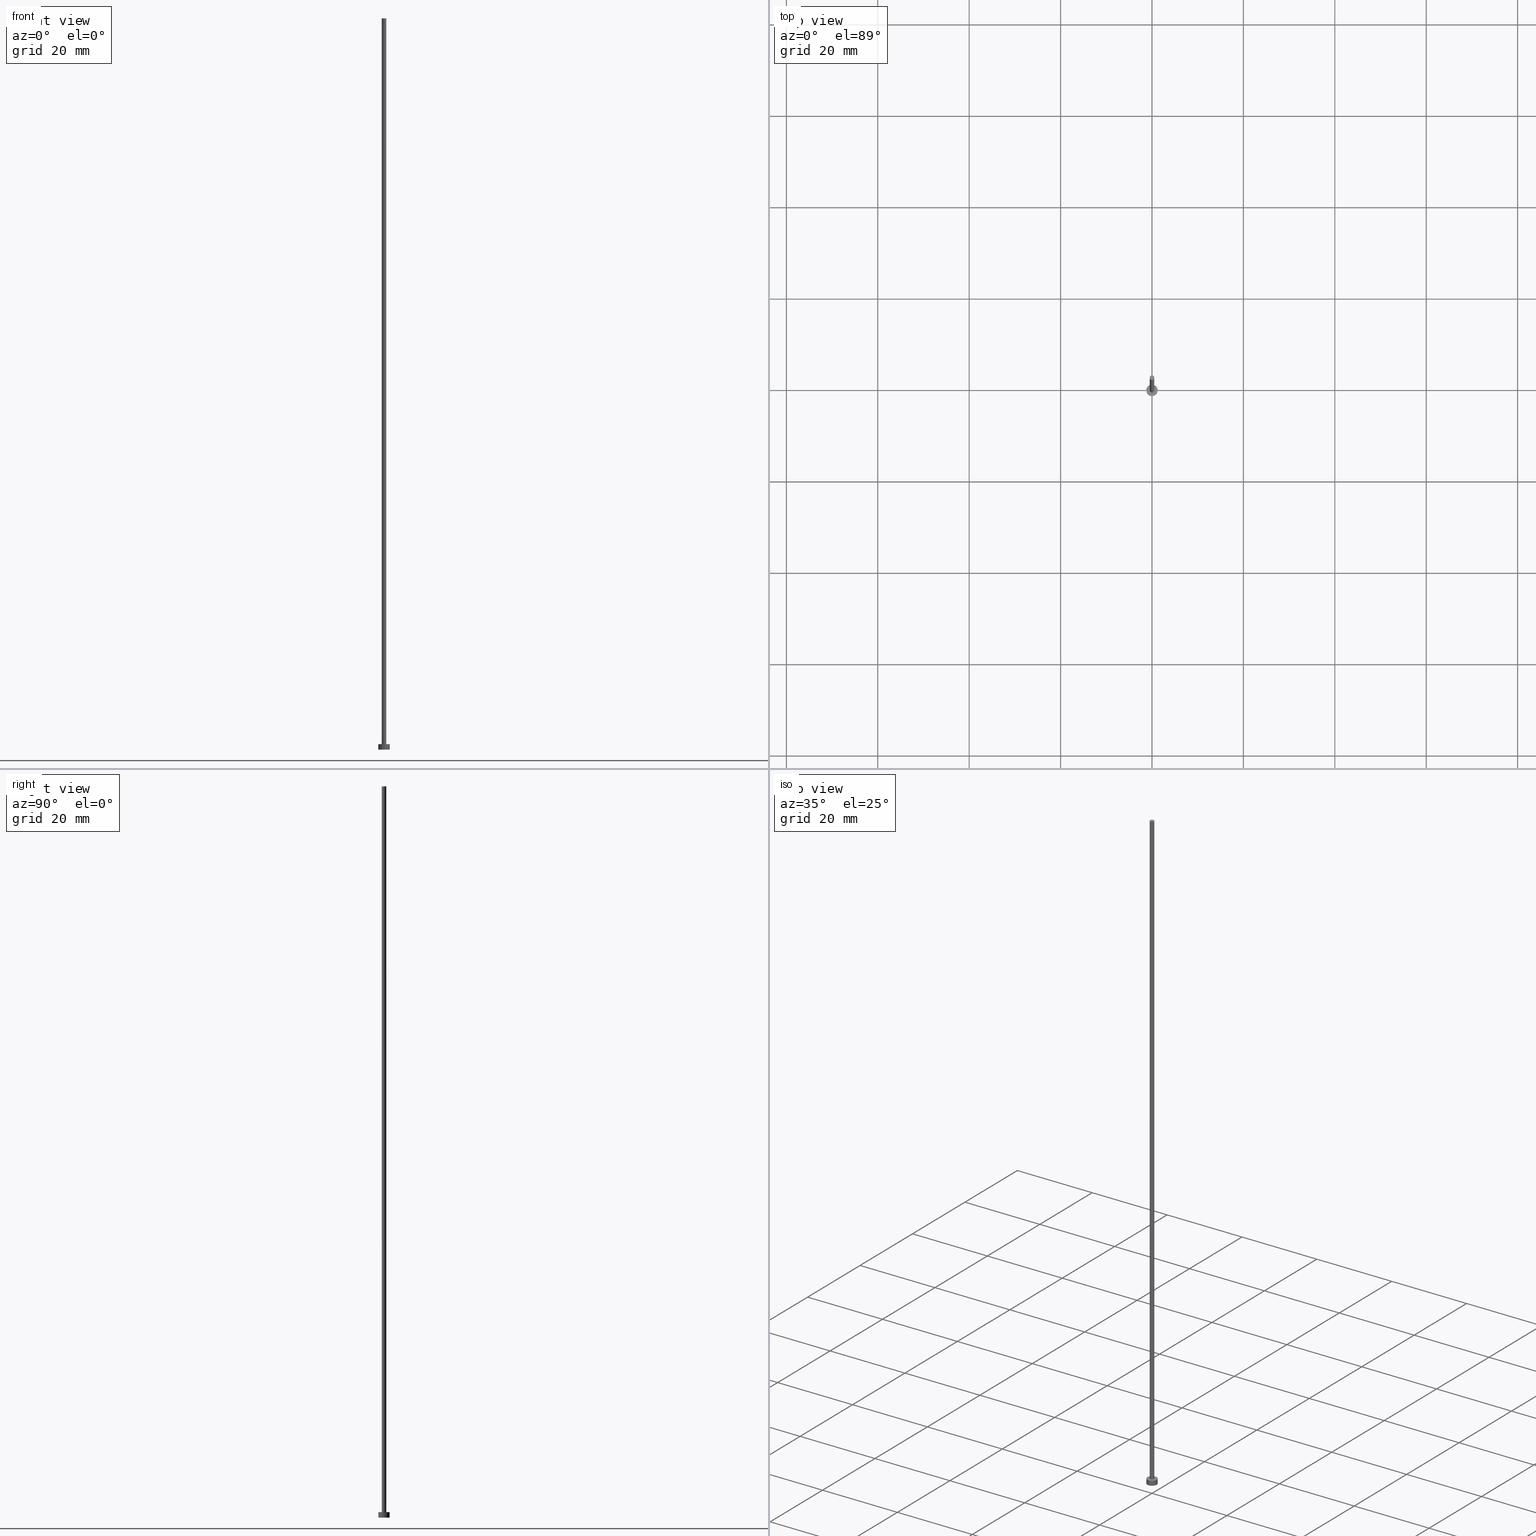
[diagram: canonical four-view strip — front | top / right | iso, engineering-drawing reading convention]
A machine part, canonical four-view strip (front | top / right | iso — engineering-drawing reading convention). The complete STEP part file that produces these views, byte-faithful:
ISO-10303-21;
HEADER;
FILE_DESCRIPTION (( 'STEP AP203' ),
    '1' );
FILE_NAME ('a1b3.STEP',
    '2023-02-13T15:27:59',
    ( '' ),
    ( '' ),
    'SwSTEP 2.0',
    'SolidWorks 2019',
    '' );
FILE_SCHEMA (( 'CONFIG_CONTROL_DESIGN' ));
ENDSEC;

DATA;
#1 = CARTESIAN_POINT ( 'NONE',  ( 0.000000000000000000, 0.000000000000000000, 1.199999999999999956 ) ) ;
#2 = AXIS2_PLACEMENT_3D ( 'NONE', #3, #166, #147 ) ;
#3 = CARTESIAN_POINT ( 'NONE',  ( 0.000000000000000000, 0.000000000000000000, 0.000000000000000000 ) ) ;
#4 = MECHANICAL_CONTEXT ( 'NONE', #229, 'mechanical' ) ;
#5 = EDGE_CURVE ( 'NONE', #38, #171, #161, .T. ) ;
#6 = ORIENTED_EDGE ( 'NONE', *, *, #246, .T. ) ;
#7 = AXIS2_PLACEMENT_3D ( 'NONE', #126, #106, #129 ) ;
#8 = EDGE_LOOP ( 'NONE', ( #113, #56 ) ) ;
#9 = CIRCLE ( 'NONE', #7, 0.5000000000000000000 ) ;
#10 = AXIS2_PLACEMENT_3D ( 'NONE', #142, #187, #207 ) ;
#11 = APPROVAL_ROLE ( '' ) ;
#12 = PRODUCT ( 'a1b3', 'a1b3', '', ( #4 ) ) ;
#13 = VERTEX_POINT ( 'NONE', #77 ) ;
#14 = SECURITY_CLASSIFICATION_LEVEL ( 'unclassified' ) ;
#15 = DATE_TIME_ROLE ( 'creation_date' ) ;
#16 = ORIENTED_EDGE ( 'NONE', *, *, #5, .F. ) ;
#17 = CYLINDRICAL_SURFACE ( 'NONE', #148, 1.250000000000000000 ) ;
#18 = PERSON_AND_ORGANIZATION ( #252, #180 ) ;
#19 = EDGE_LOOP ( 'NONE', ( #6, #184 ) ) ;
#20 = DIRECTION ( 'NONE',  ( 0.000000000000000000, 0.000000000000000000, 1.000000000000000000 ) ) ;
#21 = DIRECTION ( 'NONE',  ( -0.000000000000000000, -0.000000000000000000, -1.000000000000000000 ) ) ;
#22 = FACE_OUTER_BOUND ( 'NONE', #117, .T. ) ;
#23 = CARTESIAN_POINT ( 'NONE',  ( 0.000000000000000000, 0.000000000000000000, 160.0000000000000284 ) ) ;
#24 = CC_DESIGN_SECURITY_CLASSIFICATION ( #49, ( #92 ) ) ;
#25 = CARTESIAN_POINT ( 'NONE',  ( 0.000000000000000000, 0.000000000000000000, 0.000000000000000000 ) ) ;
#26 = DIRECTION ( 'NONE',  ( 1.000000000000000000, 0.000000000000000000, -0.000000000000000000 ) ) ;
#27 = ORIENTED_EDGE ( 'NONE', *, *, #62, .F. ) ;
#28 = PERSON_AND_ORGANIZATION_ROLE ( 'design_supplier' ) ;
#29 = COORDINATED_UNIVERSAL_TIME_OFFSET ( 1, 0, .AHEAD. ) ;
#30 = EDGE_CURVE ( 'NONE', #153, #13, #40, .T. ) ;
#31 = APPROVAL_DATE_TIME ( #200, #179 ) ;
#32 = AXIS2_PLACEMENT_3D ( 'NONE', #1, #86, #131 ) ;
#33 = APPROVAL_DATE_TIME ( #169, #132 ) ;
#34 = ORIENTED_EDGE ( 'NONE', *, *, #244, .F. ) ;
#35 = VECTOR ( 'NONE', #21, 1000.000000000000000 ) ;
#36 = EDGE_CURVE ( 'NONE', #160, #13, #164, .T. ) ;
#37 = CYLINDRICAL_SURFACE ( 'NONE', #154, 0.5000000000000000000 ) ;
#38 = VERTEX_POINT ( 'NONE', #140 ) ;
#39 = FACE_OUTER_BOUND ( 'NONE', #150, .T. ) ;
#40 = LINE ( 'NONE', #189, #78 ) ;
#41 = EDGE_CURVE ( 'NONE', #38, #205, #216, .T. ) ;
#42 = DIRECTION ( 'NONE',  ( 0.000000000000000000, 0.000000000000000000, 1.000000000000000000 ) ) ;
#43 = CC_DESIGN_APPROVAL ( #132, ( #167 ) ) ;
#44 = DIRECTION ( 'NONE',  ( 0.000000000000000000, 0.000000000000000000, 1.000000000000000000 ) ) ;
#45 = PRODUCT_RELATED_PRODUCT_CATEGORY ( 'detail', '', ( #12 ) ) ;
#46 = CARTESIAN_POINT ( 'NONE',  ( 0.000000000000000000, 0.000000000000000000, 1.199999999999999956 ) ) ;
#47 = AXIS2_PLACEMENT_3D ( 'NONE', #46, #124, #214 ) ;
#48 = LINE ( 'NONE', #237, #35 ) ;
#49 = SECURITY_CLASSIFICATION ( '', '', #14 ) ;
#50 = EDGE_LOOP ( 'NONE', ( #136, #201, #138, #70 ) ) ;
#51 = ADVANCED_FACE ( 'NONE', ( #227 ), #17, .T. ) ;
#52 = PERSON_AND_ORGANIZATION ( #252, #180 ) ;
#53 = ORIENTED_EDGE ( 'NONE', *, *, #36, .T. ) ;
#54 = PERSON_AND_ORGANIZATION ( #252, #180 ) ;
#55 = ORIENTED_EDGE ( 'NONE', *, *, #246, .F. ) ;
#56 = ORIENTED_EDGE ( 'NONE', *, *, #36, .F. ) ;
#57 = APPROVAL_ROLE ( '' ) ;
#58 = CIRCLE ( 'NONE', #192, 0.5000000000000000000 ) ;
#59 = CARTESIAN_POINT ( 'NONE',  ( 0.000000000000000000, 0.000000000000000000, 1.199999999999999956 ) ) ;
#60 = CIRCLE ( 'NONE', #32, 1.250000000000000000 ) ;
#61 = APPLICATION_CONTEXT ( 'configuration controlled 3d designs of mechanical parts and assemblies' ) ;
#62 = EDGE_CURVE ( 'NONE', #171, #72, #63, .T. ) ;
#63 = CIRCLE ( 'NONE', #10, 1.250000000000000000 ) ;
#64 = FACE_OUTER_BOUND ( 'NONE', #174, .T. ) ;
#65 = DIRECTION ( 'NONE',  ( 1.000000000000000000, 0.000000000000000000, 0.000000000000000000 ) ) ;
#66 = CYLINDRICAL_SURFACE ( 'NONE', #247, 1.250000000000000000 ) ;
#67 = AXIS2_PLACEMENT_3D ( 'NONE', #102, #159, #176 ) ;
#68 = ADVANCED_FACE ( 'NONE', ( #98 ), #37, .T. ) ;
#69 = DIRECTION ( 'NONE',  ( 1.000000000000000000, 0.000000000000000000, 0.000000000000000000 ) ) ;
#70 = ORIENTED_EDGE ( 'NONE', *, *, #255, .F. ) ;
#71 = AXIS2_PLACEMENT_3D ( 'NONE', #59, #20, #228 ) ;
#72 = VERTEX_POINT ( 'NONE', #208 ) ;
#73 = CALENDAR_DATE ( 2023, 13, 2 ) ;
#74 = ORIENTED_EDGE ( 'NONE', *, *, #236, .T. ) ;
#75 = UNCERTAINTY_MEASURE_WITH_UNIT (LENGTH_MEASURE( 1.000000000000000082E-05 ), #168, 'distance_accuracy_value', 'NONE');
#76 = DIRECTION ( 'NONE',  ( -0.000000000000000000, -0.000000000000000000, -1.000000000000000000 ) ) ;
#77 = CARTESIAN_POINT ( 'NONE',  ( -0.5000000000000000000, 0.000000000000000000, 1.199999999999999956 ) ) ;
#78 = VECTOR ( 'NONE', #121, 1000.000000000000000 ) ;
#79 = DIRECTION ( 'NONE',  ( -1.000000000000000000, 0.000000000000000000, 0.000000000000000000 ) ) ;
#80 = APPROVAL ( #115, 'NEUR�EN�' ) ;
#81 = LOCAL_TIME ( 16, 27, 59.00000000000000000, #29 ) ;
#82 = CARTESIAN_POINT ( 'NONE',  ( 0.000000000000000000, 0.000000000000000000, 1.199999999999999956 ) ) ;
#83 = VECTOR ( 'NONE', #96, 1000.000000000000000 ) ;
#84 = CARTESIAN_POINT ( 'NONE',  ( 0.000000000000000000, 0.000000000000000000, 160.0000000000000284 ) ) ;
#85 = CARTESIAN_POINT ( 'NONE',  ( 0.000000000000000000, 0.000000000000000000, 160.0000000000000284 ) ) ;
#86 = DIRECTION ( 'NONE',  ( 0.000000000000000000, 0.000000000000000000, 1.000000000000000000 ) ) ;
#87 = CC_DESIGN_PERSON_AND_ORGANIZATION_ASSIGNMENT ( #217, #173, ( #12 ) ) ;
#88 = ORIENTED_EDGE ( 'NONE', *, *, #30, .T. ) ;
#89 = CARTESIAN_POINT ( 'NONE',  ( 0.000000000000000000, 0.000000000000000000, 0.000000000000000000 ) ) ;
#90 = CIRCLE ( 'NONE', #213, 1.250000000000000000 ) ;
#91 = DATE_AND_TIME ( #114, #197 ) ;
#92 = PRODUCT_DEFINITION_FORMATION_WITH_SPECIFIED_SOURCE ( 'LIBOVOLN�', '', #12, .NOT_KNOWN. ) ;
#93 = ORIENTED_EDGE ( 'NONE', *, *, #236, .F. ) ;
#94 = ORIENTED_EDGE ( 'NONE', *, *, #244, .T. ) ;
#95 = APPROVAL_STATUS ( 'not_yet_approved' ) ;
#96 = DIRECTION ( 'NONE',  ( -0.000000000000000000, -0.000000000000000000, -1.000000000000000000 ) ) ;
#97 = DATE_TIME_ROLE ( 'classification_date' ) ;
#98 = FACE_OUTER_BOUND ( 'NONE', #198, .T. ) ;
#99 = ADVANCED_FACE ( 'NONE', ( #39 ), #123, .T. ) ;
#100 = CIRCLE ( 'NONE', #235, 0.5000000000000000000 ) ;
#101 = CC_DESIGN_APPROVAL ( #80, ( #49 ) ) ;
#102 = CARTESIAN_POINT ( 'NONE',  ( 0.000000000000000000, 0.000000000000000000, 1.199999999999999956 ) ) ;
#103 = APPROVAL_PERSON_ORGANIZATION ( #54, #132, #11 ) ;
#104 = CARTESIAN_POINT ( 'NONE',  ( 1.250000000000000000, 1.530808498934191571E-16, 0.000000000000000000 ) ) ;
#105 = DIRECTION ( 'NONE',  ( -1.000000000000000000, 0.000000000000000000, 0.000000000000000000 ) ) ;
#106 = DIRECTION ( 'NONE',  ( 0.000000000000000000, 0.000000000000000000, 1.000000000000000000 ) ) ;
#107 = FACE_OUTER_BOUND ( 'NONE', #50, .T. ) ;
#108 = CC_DESIGN_DATE_AND_TIME_ASSIGNMENT ( #135, #97, ( #49 ) ) ;
#109 = DIRECTION ( 'NONE',  ( -0.000000000000000000, -0.000000000000000000, -1.000000000000000000 ) ) ;
#110 = ORIENTED_EDGE ( 'NONE', *, *, #222, .T. ) ;
#111 = APPLICATION_PROTOCOL_DEFINITION ( 'international standard', 'config_control_design', 1994, #229 ) ;
#112 = VERTEX_POINT ( 'NONE', #181 ) ;
#113 = ORIENTED_EDGE ( 'NONE', *, *, #222, .F. ) ;
#114 = CALENDAR_DATE ( 2023, 13, 2 ) ;
#115 = APPROVAL_STATUS ( 'not_yet_approved' ) ;
#116 = LOCAL_TIME ( 16, 27, 59.00000000000000000, #139 ) ;
#117 = EDGE_LOOP ( 'NONE', ( #149, #27 ) ) ;
#118 = CALENDAR_DATE ( 2023, 13, 2 ) ;
#119 = ORIENTED_EDGE ( 'NONE', *, *, #137, .F. ) ;
#120 = PERSON_AND_ORGANIZATION ( #252, #180 ) ;
#121 = DIRECTION ( 'NONE',  ( -0.000000000000000000, -0.000000000000000000, -1.000000000000000000 ) ) ;
#122 = CC_DESIGN_DATE_AND_TIME_ASSIGNMENT ( #204, #15, ( #167 ) ) ;
#123 = CYLINDRICAL_SURFACE ( 'NONE', #203, 0.5000000000000000000 ) ;
#124 = DIRECTION ( 'NONE',  ( 0.000000000000000000, 0.000000000000000000, 1.000000000000000000 ) ) ;
#125 = CARTESIAN_POINT ( 'NONE',  ( 0.000000000000000000, 0.000000000000000000, 1.199999999999999956 ) ) ;
#126 = CARTESIAN_POINT ( 'NONE',  ( 0.000000000000000000, 0.000000000000000000, 160.0000000000000284 ) ) ;
#127 = MANIFOLD_SOLID_BREP ( 'P�idat vysunut�m3', #186 ) ;
#128 =( NAMED_UNIT ( * ) SI_UNIT ( $, .STERADIAN. ) SOLID_ANGLE_UNIT ( ) );
#129 = DIRECTION ( 'NONE',  ( 1.000000000000000000, 0.000000000000000000, 0.000000000000000000 ) ) ;
#130 = ADVANCED_BREP_SHAPE_REPRESENTATION ( 'a1b3', ( #127, #232 ), #199 ) ;
#131 = DIRECTION ( 'NONE',  ( 1.000000000000000000, 0.000000000000000000, 0.000000000000000000 ) ) ;
#132 = APPROVAL ( #241, 'NEUR�EN�' ) ;
#133 = APPROVAL_PERSON_ORGANIZATION ( #18, #179, #57 ) ;
#134 = EDGE_LOOP ( 'NONE', ( #16, #55, #224, #221 ) ) ;
#135 = DATE_AND_TIME ( #155, #116 ) ;
#136 = ORIENTED_EDGE ( 'NONE', *, *, #41, .F. ) ;
#137 = EDGE_CURVE ( 'NONE', #112, #153, #58, .T. ) ;
#138 = ORIENTED_EDGE ( 'NONE', *, *, #62, .T. ) ;
#139 = COORDINATED_UNIVERSAL_TIME_OFFSET ( 1, 0, .AHEAD. ) ;
#140 = CARTESIAN_POINT ( 'NONE',  ( 1.250000000000000000, 1.530808498934191571E-16, 1.199999999999999956 ) ) ;
#141 = ADVANCED_FACE ( 'NONE', ( #22 ), #163, .F. ) ;
#142 = CARTESIAN_POINT ( 'NONE',  ( 0.000000000000000000, 0.000000000000000000, 0.000000000000000000 ) ) ;
#143 = DIRECTION ( 'NONE',  ( -1.000000000000000000, 0.000000000000000000, 0.000000000000000000 ) ) ;
#144 = FACE_BOUND ( 'NONE', #8, .T. ) ;
#145 = EDGE_CURVE ( 'NONE', #72, #171, #90, .T. ) ;
#146 = PLANE ( 'NONE',  #47 ) ;
#147 = DIRECTION ( 'NONE',  ( 1.000000000000000000, 0.000000000000000000, -0.000000000000000000 ) ) ;
#148 = AXIS2_PLACEMENT_3D ( 'NONE', #82, #76, #79 ) ;
#149 = ORIENTED_EDGE ( 'NONE', *, *, #145, .F. ) ;
#150 = EDGE_LOOP ( 'NONE', ( #119, #74, #53, #182 ) ) ;
#151 = PERSON_AND_ORGANIZATION ( #252, #180 ) ;
#152 = CC_DESIGN_PERSON_AND_ORGANIZATION_ASSIGNMENT ( #223, #240, ( #49 ) ) ;
#153 = VERTEX_POINT ( 'NONE', #178 ) ;
#154 = AXIS2_PLACEMENT_3D ( 'NONE', #175, #248, #143 ) ;
#155 = CALENDAR_DATE ( 2023, 13, 2 ) ;
#156 = COORDINATED_UNIVERSAL_TIME_OFFSET ( 1, 0, .AHEAD. ) ;
#157 = VECTOR ( 'NONE', #109, 1000.000000000000000 ) ;
#158 = APPLICATION_PROTOCOL_DEFINITION ( 'international standard', 'config_control_design', 1994, #61 ) ;
#159 = DIRECTION ( 'NONE',  ( 0.000000000000000000, 0.000000000000000000, 1.000000000000000000 ) ) ;
#160 = VERTEX_POINT ( 'NONE', #210 ) ;
#161 = LINE ( 'NONE', #250, #83 ) ;
#162 = CC_DESIGN_APPROVAL ( #179, ( #92 ) ) ;
#163 = PLANE ( 'NONE',  #2 ) ;
#164 = CIRCLE ( 'NONE', #71, 0.5000000000000000000 ) ;
#165 = LINE ( 'NONE', #196, #157 ) ;
#166 = DIRECTION ( 'NONE',  ( 0.000000000000000000, 0.000000000000000000, 1.000000000000000000 ) ) ;
#167 = PRODUCT_DEFINITION ( 'NEZN�M�', '', #92, #190 ) ;
#168 =( LENGTH_UNIT ( ) NAMED_UNIT ( * ) SI_UNIT ( .MILLI., .METRE. ) );
#169 = DATE_AND_TIME ( #220, #195 ) ;
#170 = CC_DESIGN_PERSON_AND_ORGANIZATION_ASSIGNMENT ( #151, #28, ( #92 ) ) ;
#171 = VERTEX_POINT ( 'NONE', #104 ) ;
#172 = PERSON_AND_ORGANIZATION ( #252, #180 ) ;
#173 = PERSON_AND_ORGANIZATION_ROLE ( 'design_owner' ) ;
#174 = EDGE_LOOP ( 'NONE', ( #94, #242 ) ) ;
#175 = CARTESIAN_POINT ( 'NONE',  ( 0.000000000000000000, 0.000000000000000000, 160.0000000000000284 ) ) ;
#176 = DIRECTION ( 'NONE',  ( 1.000000000000000000, 0.000000000000000000, 0.000000000000000000 ) ) ;
#177 = DIRECTION ( 'NONE',  ( -0.000000000000000000, -0.000000000000000000, -1.000000000000000000 ) ) ;
#178 = CARTESIAN_POINT ( 'NONE',  ( -0.5000000000000000000, 0.000000000000000000, 160.0000000000000284 ) ) ;
#179 = APPROVAL ( #95, 'NEUR�EN�' ) ;
#180 = ORGANIZATION ( 'NEUR�EN�', 'NEUR�EN�', '' ) ;
#181 = CARTESIAN_POINT ( 'NONE',  ( 0.5000000000000000000, 6.123233995736766036E-17, 160.0000000000000284 ) ) ;
#182 = ORIENTED_EDGE ( 'NONE', *, *, #30, .F. ) ;
#183 = COORDINATED_UNIVERSAL_TIME_OFFSET ( 1, 0, .AHEAD. ) ;
#184 = ORIENTED_EDGE ( 'NONE', *, *, #41, .T. ) ;
#185 = CC_DESIGN_PERSON_AND_ORGANIZATION_ASSIGNMENT ( #172, #225, ( #92 ) ) ;
#186 = CLOSED_SHELL ( 'NONE', ( #99, #218, #51, #231, #141, #68, #209 ) ) ;
#187 = DIRECTION ( 'NONE',  ( 0.000000000000000000, 0.000000000000000000, 1.000000000000000000 ) ) ;
#188 = CC_DESIGN_PERSON_AND_ORGANIZATION_ASSIGNMENT ( #52, #243, ( #167 ) ) ;
#189 = CARTESIAN_POINT ( 'NONE',  ( -0.5000000000000000000, 0.000000000000000000, 160.0000000000000284 ) ) ;
#190 = DESIGN_CONTEXT ( 'detailed design', #61, 'design' ) ;
#191 = DIRECTION ( 'NONE',  ( 0.000000000000000000, 0.000000000000000000, 1.000000000000000000 ) ) ;
#192 = AXIS2_PLACEMENT_3D ( 'NONE', #84, #191, #211 ) ;
#193 = PRODUCT_DEFINITION_SHAPE ( 'NONE', 'NONE',  #167 ) ;
#194 = DIRECTION ( 'NONE',  ( -0.000000000000000000, -0.000000000000000000, -1.000000000000000000 ) ) ;
#195 = LOCAL_TIME ( 16, 27, 59.00000000000000000, #156 ) ;
#196 = CARTESIAN_POINT ( 'NONE',  ( -1.250000000000000000, 0.000000000000000000, 1.199999999999999956 ) ) ;
#197 = LOCAL_TIME ( 16, 27, 59.00000000000000000, #202 ) ;
#198 = EDGE_LOOP ( 'NONE', ( #93, #34, #88, #110 ) ) ;
#199 =( GEOMETRIC_REPRESENTATION_CONTEXT ( 3 ) GLOBAL_UNCERTAINTY_ASSIGNED_CONTEXT ( ( #75 ) ) GLOBAL_UNIT_ASSIGNED_CONTEXT ( ( #168, #249, #128 ) ) REPRESENTATION_CONTEXT ( 'NONE', 'WORKASPACE' ) );
#200 = DATE_AND_TIME ( #118, #230 ) ;
#201 = ORIENTED_EDGE ( 'NONE', *, *, #5, .T. ) ;
#202 = COORDINATED_UNIVERSAL_TIME_OFFSET ( 1, 0, .AHEAD. ) ;
#203 = AXIS2_PLACEMENT_3D ( 'NONE', #85, #194, #105 ) ;
#204 = DATE_AND_TIME ( #73, #81 ) ;
#205 = VERTEX_POINT ( 'NONE', #253 ) ;
#206 = APPROVAL_DATE_TIME ( #91, #80 ) ;
#207 = DIRECTION ( 'NONE',  ( 1.000000000000000000, 0.000000000000000000, 0.000000000000000000 ) ) ;
#208 = CARTESIAN_POINT ( 'NONE',  ( -1.250000000000000000, 0.000000000000000000, 0.000000000000000000 ) ) ;
#209 = ADVANCED_FACE ( 'NONE', ( #64 ), #239, .T. ) ;
#210 = CARTESIAN_POINT ( 'NONE',  ( 0.5000000000000000000, 6.123233995736766036E-17, 1.199999999999999956 ) ) ;
#211 = DIRECTION ( 'NONE',  ( 1.000000000000000000, 0.000000000000000000, 0.000000000000000000 ) ) ;
#212 = FACE_OUTER_BOUND ( 'NONE', #19, .T. ) ;
#213 = AXIS2_PLACEMENT_3D ( 'NONE', #25, #44, #234 ) ;
#214 = DIRECTION ( 'NONE',  ( 1.000000000000000000, 0.000000000000000000, -0.000000000000000000 ) ) ;
#215 = CARTESIAN_POINT ( 'NONE',  ( 0.000000000000000000, 0.000000000000000000, 1.199999999999999956 ) ) ;
#216 = CIRCLE ( 'NONE', #67, 1.250000000000000000 ) ;
#217 = PERSON_AND_ORGANIZATION ( #252, #180 ) ;
#218 = ADVANCED_FACE ( 'NONE', ( #107 ), #66, .T. ) ;
#219 = APPROVAL_ROLE ( '' ) ;
#220 = CALENDAR_DATE ( 2023, 13, 2 ) ;
#221 = ORIENTED_EDGE ( 'NONE', *, *, #145, .T. ) ;
#222 = EDGE_CURVE ( 'NONE', #13, #160, #100, .T. ) ;
#223 = PERSON_AND_ORGANIZATION ( #252, #180 ) ;
#224 = ORIENTED_EDGE ( 'NONE', *, *, #255, .T. ) ;
#225 = PERSON_AND_ORGANIZATION_ROLE ( 'creator' ) ;
#226 = AXIS2_PLACEMENT_3D ( 'NONE', #23, #42, #26 ) ;
#227 = FACE_OUTER_BOUND ( 'NONE', #134, .T. ) ;
#228 = DIRECTION ( 'NONE',  ( 1.000000000000000000, 0.000000000000000000, 0.000000000000000000 ) ) ;
#229 = APPLICATION_CONTEXT ( 'configuration controlled 3d designs of mechanical parts and assemblies' ) ;
#230 = LOCAL_TIME ( 16, 27, 59.00000000000000000, #183 ) ;
#231 = ADVANCED_FACE ( 'NONE', ( #144, #212 ), #146, .T. ) ;
#232 = AXIS2_PLACEMENT_3D ( 'NONE', #89, #238, #69 ) ;
#233 = DIRECTION ( 'NONE',  ( 0.000000000000000000, 0.000000000000000000, 1.000000000000000000 ) ) ;
#234 = DIRECTION ( 'NONE',  ( 1.000000000000000000, 0.000000000000000000, 0.000000000000000000 ) ) ;
#235 = AXIS2_PLACEMENT_3D ( 'NONE', #215, #233, #65 ) ;
#236 = EDGE_CURVE ( 'NONE', #112, #160, #48, .T. ) ;
#237 = CARTESIAN_POINT ( 'NONE',  ( 0.5000000000000000000, 6.123233995736766036E-17, 160.0000000000000284 ) ) ;
#238 = DIRECTION ( 'NONE',  ( 0.000000000000000000, 0.000000000000000000, 1.000000000000000000 ) ) ;
#239 = PLANE ( 'NONE',  #226 ) ;
#240 = PERSON_AND_ORGANIZATION_ROLE ( 'classification_officer' ) ;
#241 = APPROVAL_STATUS ( 'not_yet_approved' ) ;
#242 = ORIENTED_EDGE ( 'NONE', *, *, #137, .T. ) ;
#243 = PERSON_AND_ORGANIZATION_ROLE ( 'creator' ) ;
#244 = EDGE_CURVE ( 'NONE', #153, #112, #9, .T. ) ;
#245 = SHAPE_DEFINITION_REPRESENTATION ( #193, #130 ) ;
#246 = EDGE_CURVE ( 'NONE', #205, #38, #60, .T. ) ;
#247 = AXIS2_PLACEMENT_3D ( 'NONE', #125, #177, #254 ) ;
#248 = DIRECTION ( 'NONE',  ( -0.000000000000000000, -0.000000000000000000, -1.000000000000000000 ) ) ;
#249 =( NAMED_UNIT ( * ) PLANE_ANGLE_UNIT ( ) SI_UNIT ( $, .RADIAN. ) );
#250 = CARTESIAN_POINT ( 'NONE',  ( 1.250000000000000000, 1.530808498934191571E-16, 1.199999999999999956 ) ) ;
#251 = APPROVAL_PERSON_ORGANIZATION ( #120, #80, #219 ) ;
#252 = PERSON ( 'NEUR�EN�', 'NEUR�EN�', 'NEUR�EN�', ('NEUR�EN�'), ('NEUR�EN�'), ('NEUR�EN�') ) ;
#253 = CARTESIAN_POINT ( 'NONE',  ( -1.250000000000000000, 0.000000000000000000, 1.199999999999999956 ) ) ;
#254 = DIRECTION ( 'NONE',  ( -1.000000000000000000, 0.000000000000000000, 0.000000000000000000 ) ) ;
#255 = EDGE_CURVE ( 'NONE', #205, #72, #165, .T. ) ;
ENDSEC;
END-ISO-10303-21;
